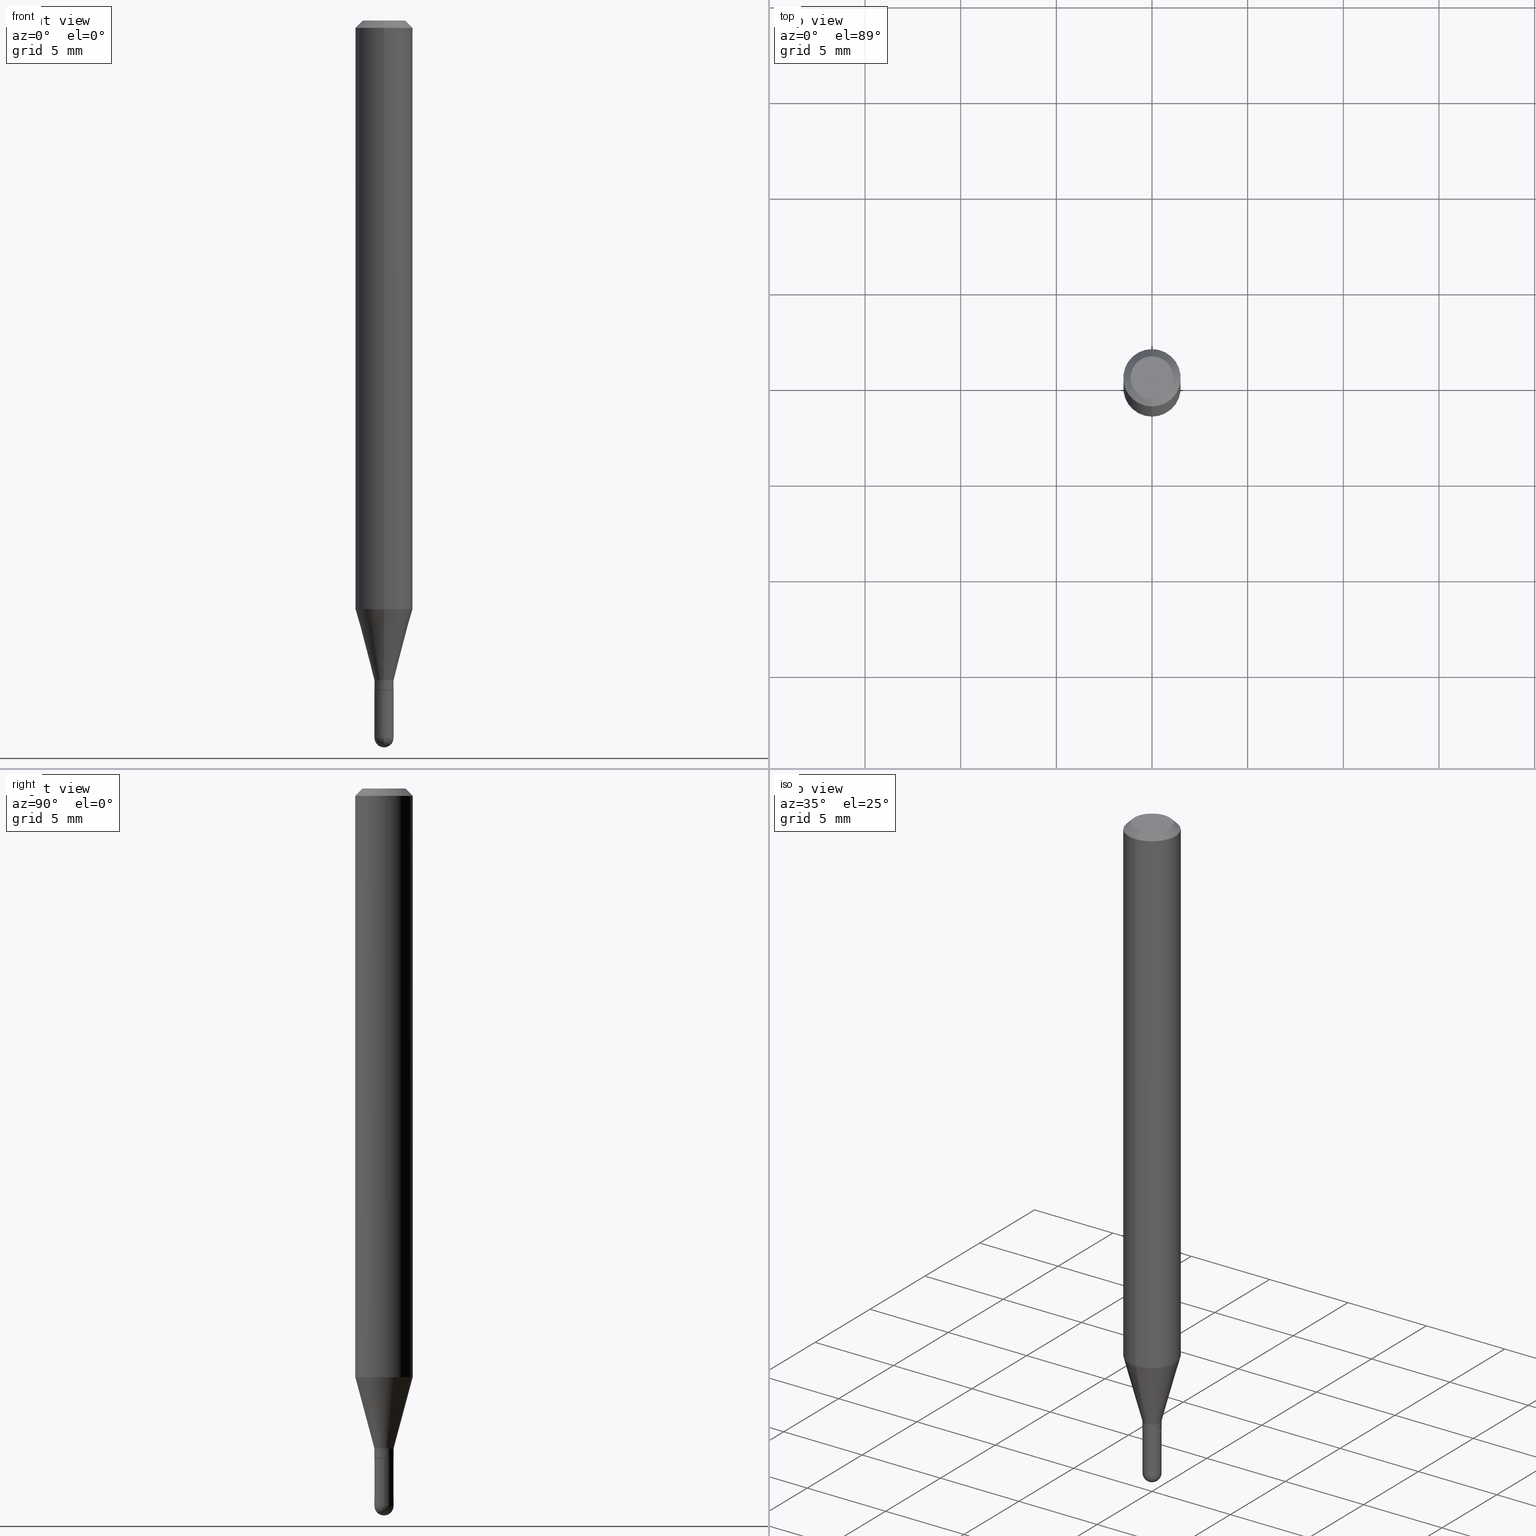
[diagram: canonical four-view strip — front | top / right | iso, engineering-drawing reading convention]
A machine part, canonical four-view strip (front | top / right | iso — engineering-drawing reading convention). The complete STEP part file that produces these views, byte-faithful:
ISO-10303-21;
HEADER;
FILE_DESCRIPTION (( 'STEP AP203' ),
    '1' );
FILE_NAME ('01979.STEP',
    '2024-03-07T19:50:08',
    ( '' ),
    ( '' ),
    'SwSTEP 2.0',
    'SolidWorks 2023',
    '' );
FILE_SCHEMA (( 'CONFIG_CONTROL_DESIGN' ));
ENDSEC;

DATA;
#1 = DIRECTION ( 'NONE',  ( 1.000000000000000000, -6.982962677686278543E-15, 0.000000000000000000 ) ) ;
#2 = PERSON_AND_ORGANIZATION ( #281, #487 ) ;
#3 = FACE_OUTER_BOUND ( 'NONE', #146, .T. ) ;
#4 = EDGE_CURVE ( 'NONE', #191, #498, #394, .T. ) ;
#5 = CYLINDRICAL_SURFACE ( 'NONE', #496, 0.01969999999999978366 ) ;
#6 = CONICAL_SURFACE ( 'NONE', #300, 0.05904999999999999832, 0.7853981633974483900 ) ;
#7 = DIRECTION ( 'NONE',  ( -6.982962677686265922E-15, -1.000000000000000000, 3.505890868245046092E-15 ) ) ;
#8 = VERTEX_POINT ( 'NONE', #322 ) ;
#9 = DIRECTION ( 'NONE',  ( -2.445625033905502397E-29, 3.491257611855652389E-15, 1.000000000000000000 ) ) ;
#10 = SPHERICAL_SURFACE ( 'NONE', #12, 0.01969999999999989468 ) ;
#11 = ORIENTED_EDGE ( 'NONE', *, *, #452, .T. ) ;
#12 = AXIS2_PLACEMENT_3D ( 'NONE', #369, #137, #14 ) ;
#13 = COORDINATED_UNIVERSAL_TIME_OFFSET ( 5, 0, .BEHIND. ) ;
#14 = DIRECTION ( 'NONE',  ( -6.982962677686266711E-15, -1.000000000000000000, 0.000000000000000000 ) ) ;
#15 = CC_DESIGN_PERSON_AND_ORGANIZATION_ASSIGNMENT ( #79, #288, ( #165 ) ) ;
#16 = ORIENTED_EDGE ( 'NONE', *, *, #169, .T. ) ;
#17 = CARTESIAN_POINT ( 'NONE',  ( 3.321403358547062397E-29, -4.741476962661159590E-15, -1.358099999999999641 ) ) ;
#18 = ORIENTED_EDGE ( 'NONE', *, *, #452, .F. ) ;
#19 = DIRECTION ( 'NONE',  ( -6.982962677686265922E-15, -1.000000000000000000, 4.626330217890369336E-15 ) ) ;
#20 = ORIENTED_EDGE ( 'NONE', *, *, #22, .T. ) ;
#21 = AXIS2_PLACEMENT_3D ( 'NONE', #474, #436, #203 ) ;
#22 = EDGE_CURVE ( 'NONE', #185, #248, #122, .T. ) ;
#23 = AXIS2_PLACEMENT_3D ( 'NONE', #294, #405, #449 ) ;
#24 = CARTESIAN_POINT ( 'NONE',  ( 3.610490145451735091E-29, -5.154823048668019264E-15, -1.476399999999999935 ) ) ;
#25 = EDGE_LOOP ( 'NONE', ( #382, #141, #104, #263 ) ) ;
#26 = CARTESIAN_POINT ( 'NONE',  ( -1.375643647503856631E-16, -0.01970000000000480048, -1.377499999999999947 ) ) ;
#27 = VERTEX_POINT ( 'NONE', #78 ) ;
#28 = CYLINDRICAL_SURFACE ( 'NONE', #77, 0.05904999999999999832 ) ;
#29 = EDGE_LOOP ( 'NONE', ( #270, #230, #232, #212 ) ) ;
#30 = ADVANCED_FACE ( 'NONE', ( #3 ), #398, .T. ) ;
#31 = PERSON_AND_ORGANIZATION ( #281, #487 ) ;
#32 = CIRCLE ( 'NONE', #23, 0.01969999999999999876 ) ;
#33 = EDGE_LOOP ( 'NONE', ( #392, #407, #64, #70 ) ) ;
#34 = DATE_AND_TIME ( #428, #439 ) ;
#35 = DIRECTION ( 'NONE',  ( -2.445468806185136597E-29, 3.491481338843145583E-15, 1.000000000000000000 ) ) ;
#36 = ADVANCED_FACE ( 'NONE', ( #237 ), #282, .F. ) ;
#37 = CARTESIAN_POINT ( 'NONE',  ( -0.01969999999999999876, 1.399769189447397278E-16, -9.690302127802162501E-31 ) ) ;
#38 = EDGE_CURVE ( 'NONE', #174, #389, #319, .T. ) ;
#39 = DIRECTION ( 'NONE',  ( 1.000000000000000000, 0.000000000000000000, 0.000000000000000000 ) ) ;
#40 = CIRCLE ( 'NONE', #440, 0.01969999999999964488 ) ;
#41 = FACE_OUTER_BOUND ( 'NONE', #217, .T. ) ;
#42 = AXIS2_PLACEMENT_3D ( 'NONE', #93, #97, #100 ) ;
#43 = LOCAL_TIME ( 14, 50, 8.000000000000000000, #13 ) ;
#44 = PERSON_AND_ORGANIZATION ( #281, #487 ) ;
#45 = FACE_OUTER_BOUND ( 'NONE', #25, .T. ) ;
#46 = DATE_TIME_ROLE ( 'classification_date' ) ;
#47 = FACE_OUTER_BOUND ( 'NONE', #379, .T. ) ;
#48 = AXIS2_PLACEMENT_3D ( 'NONE', #88, #126, #160 ) ;
#49 = CARTESIAN_POINT ( 'NONE',  ( 4.195754854663390985E-16, 0.05904999999999999832, -2.061587619800762305E-16 ) ) ;
#50 = ORIENTED_EDGE ( 'NONE', *, *, #250, .F. ) ;
#51 = AXIS2_PLACEMENT_3D ( 'NONE', #338, #450, #98 ) ;
#52 = CARTESIAN_POINT ( 'NONE',  ( 3.370071296721782520E-29, -4.810952989137087995E-15, -1.377999999999999892 ) ) ;
#53 = CARTESIAN_POINT ( 'NONE',  ( 3.368848484204829196E-29, -4.809207360331161033E-15, -1.377499999999999947 ) ) ;
#54 = PRODUCT_DEFINITION ( 'UNKNOWN', '', #192, #355 ) ;
#55 = COORDINATED_UNIVERSAL_TIME_OFFSET ( 5, 0, .BEHIND. ) ;
#56 = CARTESIAN_POINT ( 'NONE',  ( 5.838220061560797659E-46, -8.334364404613009200E-32, -2.387209805518527816E-17 ) ) ;
#57 = EDGE_LOOP ( 'NONE', ( #460, #352, #144, #387 ) ) ;
#58 = VECTOR ( 'NONE', #446, 39.37007874015748143 ) ;
#59 = CARTESIAN_POINT ( 'NONE',  ( 0.000000000000000000, 0.000000000000000000, 0.000000000000000000 ) ) ;
#60 = EDGE_LOOP ( 'NONE', ( #350, #395 ) ) ;
#61 = DIRECTION ( 'NONE',  ( -6.982962677686265133E-15, -1.000000000000000000, 3.491257611855652389E-15 ) ) ;
#62 = EDGE_LOOP ( 'NONE', ( #456, #273, #342, #90 ) ) ;
#63 = DIRECTION ( 'NONE',  ( -2.445468806185136597E-29, 3.491481338843145583E-15, 1.000000000000000000 ) ) ;
#64 = ORIENTED_EDGE ( 'NONE', *, *, #478, .F. ) ;
#65 = CC_DESIGN_PERSON_AND_ORGANIZATION_ASSIGNMENT ( #2, #279, ( #192 ) ) ;
#66 = APPROVAL_PERSON_ORGANIZATION ( #508, #219, #435 ) ;
#67 = AXIS2_PLACEMENT_3D ( 'NONE', #277, #509, #318 ) ;
#68 = CIRCLE ( 'NONE', #227, 0.01969999999999999876 ) ;
#69 = CARTESIAN_POINT ( 'NONE',  ( -4.051124067684085231E-16, -0.05905000000000005383, -0.01499999999999981730 ) ) ;
#70 = ORIENTED_EDGE ( 'NONE', *, *, #303, .F. ) ;
#71 = EDGE_CURVE ( 'NONE', #185, #361, #384, .T. ) ;
#72 = CARTESIAN_POINT ( 'NONE',  ( 1.399769189447754238E-16, 0.01969999999999479112, -1.476399999999999935 ) ) ;
#73 = ORIENTED_EDGE ( 'NONE', *, *, #447, .F. ) ;
#74 = CARTESIAN_POINT ( 'NONE',  ( 0.000000000000000000, 0.000000000000000000, 0.000000000000000000 ) ) ;
#75 = ORIENTED_EDGE ( 'NONE', *, *, #477, .T. ) ;
#76 =( CONVERSION_BASED_UNIT ( 'INCH', #321 ) LENGTH_UNIT ( ) NAMED_UNIT ( #504 ) );
#77 = AXIS2_PLACEMENT_3D ( 'NONE', #59, #218, #105 ) ;
#78 = CARTESIAN_POINT ( 'NONE',  ( 1.382005621053728545E-16, 0.01919999999999518620, -1.377999999999999892 ) ) ;
#79 = PERSON_AND_ORGANIZATION ( #281, #487 ) ;
#80 = EDGE_LOOP ( 'NONE', ( #188, #261, #280, #226 ) ) ;
#81 = COORDINATED_UNIVERSAL_TIME_OFFSET ( 5, 0, .BEHIND. ) ;
#82 = DIRECTION ( 'NONE',  ( -4.937700262164674260E-15, -0.7071067811865632269, 0.7071067811865319186 ) ) ;
#83 = CARTESIAN_POINT ( 'NONE',  ( 3.599717260347271507E-16, 0.04404999999999999888, -1.776619958574267450E-16 ) ) ;
#84 = VECTOR ( 'NONE', #198, 39.37007874015748143 ) ;
#85 = DIRECTION ( 'NONE',  ( -6.982962677686266711E-15, -1.000000000000000000, 0.000000000000000000 ) ) ;
#86 = CIRCLE ( 'NONE', #415, 0.01919999999999999485 ) ;
#87 = EDGE_CURVE ( 'NONE', #153, #429, #358, .T. ) ;
#88 = CARTESIAN_POINT ( 'NONE',  ( 5.838220061560797659E-46, -8.334364404613009200E-32, -2.387209805518527816E-17 ) ) ;
#89 = ADVANCED_FACE ( 'NONE', ( #399 ), #150, .T. ) ;
#90 = ORIENTED_EDGE ( 'NONE', *, *, #286, .F. ) ;
#91 = LOCAL_TIME ( 14, 50, 8.000000000000000000, #81 ) ;
#92 = AXIS2_PLACEMENT_3D ( 'NONE', #469, #287, #1 ) ;
#93 = CARTESIAN_POINT ( 'NONE',  ( 3.369856014923117948E-29, -4.811261284925853951E-15, -1.377999999999999892 ) ) ;
#94 = VECTOR ( 'NONE', #9, 39.37007874015748143 ) ;
#95 = ORIENTED_EDGE ( 'NONE', *, *, #87, .F. ) ;
#96 = AXIS2_PLACEMENT_3D ( 'NONE', #502, #231, #311 ) ;
#97 = DIRECTION ( 'NONE',  ( -2.445468806185136597E-29, 3.491481338843145583E-15, 1.000000000000000000 ) ) ;
#98 = DIRECTION ( 'NONE',  ( 7.105427357601000281E-15, 1.000000000000000000, 0.000000000000000000 ) ) ;
#99 = VERTEX_POINT ( 'NONE', #510 ) ;
#100 = DIRECTION ( 'NONE',  ( 1.000000000000000000, -6.982962677686278543E-15, 0.000000000000000000 ) ) ;
#101 = ORIENTED_EDGE ( 'NONE', *, *, #4, .T. ) ;
#102 = APPROVAL_PERSON_ORGANIZATION ( #489, #314, #329 ) ;
#103 = DIRECTION ( 'NONE',  ( 1.000000000000000000, -6.982962677686265922E-15, 4.876176775795935232E-29 ) ) ;
#104 = ORIENTED_EDGE ( 'NONE', *, *, #442, .T. ) ;
#105 = DIRECTION ( 'NONE',  ( -6.982962677686265922E-15, -1.000000000000000000, 3.491257611855651601E-15 ) ) ;
#106 = ORIENTED_EDGE ( 'NONE', *, *, #210, .T. ) ;
#107 = FACE_OUTER_BOUND ( 'NONE', #467, .T. ) ;
#108 = ORIENTED_EDGE ( 'NONE', *, *, #348, .F. ) ;
#109 = VECTOR ( 'NONE', #211, 39.37007874015748143 ) ;
#110 = EDGE_CURVE ( 'NONE', #99, #361, #225, .T. ) ;
#111 = DIRECTION ( 'NONE',  ( -2.445468806185136877E-29, 3.491481338843145188E-15, 1.000000000000000000 ) ) ;
#112 = ORIENTED_EDGE ( 'NONE', *, *, #22, .F. ) ;
#113 = ADVANCED_FACE ( 'NONE', ( #41 ), #364, .T. ) ;
#114 = DATE_AND_TIME ( #397, #91 ) ;
#115 = ORIENTED_EDGE ( 'NONE', *, *, #87, .T. ) ;
#116 = CARTESIAN_POINT ( 'NONE',  ( -1.340728834115425821E-16, -0.01920000000000480697, -1.377999999999999892 ) ) ;
#117 = AXIS2_PLACEMENT_3D ( 'NONE', #325, #356, #205 ) ;
#118 = AXIS2_PLACEMENT_3D ( 'NONE', #438, #196, #85 ) ;
#119 = LINE ( 'NONE', #239, #158 ) ;
#120 = EDGE_CURVE ( 'NONE', #507, #8, #40, .T. ) ;
#121 = APPROVAL_STATUS ( 'not_yet_approved' ) ;
#122 = LINE ( 'NONE', #37, #84 ) ;
#123 = APPROVAL_DATE_TIME ( #403, #347 ) ;
#124 = CARTESIAN_POINT ( 'NONE',  ( 3.668437550858259428E-31, -5.236886417783486226E-17, -0.01500000000000002373 ) ) ;
#125 = ADVANCED_FACE ( 'NONE', ( #45 ), #223, .T. ) ;
#126 = DIRECTION ( 'NONE',  ( -2.445625033905502397E-29, 3.491257611855651995E-15, 1.000000000000000000 ) ) ;
#127 = CIRCLE ( 'NONE', #260, 0.05904999999999999832 ) ;
#128 = PLANE ( 'NONE',  #488 ) ;
#129 = DIRECTION ( 'NONE',  ( -1.000000000000000000, 6.982962677686265922E-15, -4.876176775795935793E-29 ) ) ;
#130 = EDGE_CURVE ( 'NONE', #266, #507, #119, .T. ) ;
#131 = APPLICATION_CONTEXT ( 'configuration controlled 3d designs of mechanical parts and assemblies' ) ;
#132 = LOCAL_TIME ( 14, 50, 8.000000000000000000, #55 ) ;
#133 = DIRECTION ( 'NONE',  ( -2.445625033905502397E-29, 3.491257611855651995E-15, 1.000000000000000000 ) ) ;
#134 = CIRCLE ( 'NONE', #402, 0.04404999999999999888 ) ;
#135 = ADVANCED_FACE ( 'NONE', ( #316 ), #434, .T. ) ;
#136 = DATE_AND_TIME ( #368, #132 ) ;
#137 = DIRECTION ( 'NONE',  ( 1.000000000000000000, -6.982962677686266711E-15, 4.883557194083112340E-29 ) ) ;
#138 = ORIENTED_EDGE ( 'NONE', *, *, #187, .F. ) ;
#139 = DIRECTION ( 'NONE',  ( -2.445625033905502397E-29, 3.491257611855651995E-15, 1.000000000000000000 ) ) ;
#140 = CARTESIAN_POINT ( 'NONE',  ( 3.668437550858259428E-31, -5.236886417783486226E-17, -0.01500000000000002373 ) ) ;
#141 = ORIENTED_EDGE ( 'NONE', *, *, #305, .F. ) ;
#142 = CIRCLE ( 'NONE', #337, 0.01969999999999991896 ) ;
#143 = DIRECTION ( 'NONE',  ( -2.445625033905502397E-29, 3.491257611855651995E-15, 1.000000000000000000 ) ) ;
#144 = ORIENTED_EDGE ( 'NONE', *, *, #468, .F. ) ;
#145 = CARTESIAN_POINT ( 'NONE',  ( 2.962248161208970335E-29, -4.228764139084222964E-15, -1.211243800722163311 ) ) ;
#146 = EDGE_LOOP ( 'NONE', ( #220, #307, #309, #301 ) ) ;
#147 = LINE ( 'NONE', #259, #423 ) ;
#148 = VERTEX_POINT ( 'NONE', #431 ) ;
#149 = EDGE_CURVE ( 'NONE', #27, #153, #252, .T. ) ;
#150 = CONICAL_SURFACE ( 'NONE', #67, 0.01969999999999964488, 0.2617993877991500740 ) ;
#151 = MANIFOLD_SOLID_BREP ( 'Body-Move/Copy2[2]', #249 ) ;
#152 = DIRECTION ( 'NONE',  ( 6.982962677686265922E-15, 1.000000000000000000, -3.491257611855652389E-15 ) ) ;
#153 = VERTEX_POINT ( 'NONE', #493 ) ;
#154 = DIRECTION ( 'NONE',  ( -2.445625033905502397E-29, 3.491257611855652389E-15, 1.000000000000000000 ) ) ;
#155 = DIRECTION ( 'NONE',  ( 2.445625033905502397E-29, -3.491257611855651995E-15, -1.000000000000000000 ) ) ;
#156 = CC_DESIGN_APPROVAL ( #219, ( #54 ) ) ;
#157 = APPLICATION_CONTEXT ( 'configuration controlled 3d designs of mechanical parts and assemblies' ) ;
#158 = VECTOR ( 'NONE', #154, 39.37007874015748143 ) ;
#159 = CARTESIAN_POINT ( 'NONE',  ( -4.123439461173446476E-16, -0.05905000000000424493, -1.211243800722163089 ) ) ;
#160 = DIRECTION ( 'NONE',  ( -6.982962677686265133E-15, -1.000000000000000000, 3.491257611855652389E-15 ) ) ;
#161 = APPROVAL_DATE_TIME ( #114, #219 ) ;
#162 = DIRECTION ( 'NONE',  ( 1.000000000000000000, -6.982962677686265922E-15, 4.876176775795935232E-29 ) ) ;
#163 = CARTESIAN_POINT ( 'NONE',  ( 3.370071296721782520E-29, -4.810952989137087995E-15, -1.377999999999999892 ) ) ;
#164 = CARTESIAN_POINT ( 'NONE',  ( 3.610490145451735091E-29, -5.154823048668019264E-15, -1.476399999999999935 ) ) ;
#165 = SECURITY_CLASSIFICATION ( '', '', #433 ) ;
#166 = CARTESIAN_POINT ( 'NONE',  ( 3.668437550858259428E-31, -5.236886417783486226E-17, -0.01500000000000002373 ) ) ;
#167 = UNCERTAINTY_MEASURE_WITH_UNIT (LENGTH_MEASURE( 1.000000000000000082E-05 ), #76, 'distance_accuracy_value', 'NONE');
#168 = DIRECTION ( 'NONE',  ( 2.438088387897960049E-29, -3.491481338843145188E-15, -1.000000000000000000 ) ) ;
#169 = EDGE_CURVE ( 'NONE', #148, #248, #201, .T. ) ;
#170 = DIRECTION ( 'NONE',  ( -2.445625033905502397E-29, 3.491257611855651995E-15, 1.000000000000000000 ) ) ;
#171 = APPROVAL_STATUS ( 'not_yet_approved' ) ;
#172 = CARTESIAN_POINT ( 'NONE',  ( -0.01969999999999999876, -4.843065247852196904E-15, -1.476399999999999935 ) ) ;
#173 = VECTOR ( 'NONE', #111, 39.37007874015748143 ) ;
#174 = VERTEX_POINT ( 'NONE', #292 ) ;
#175 = CARTESIAN_POINT ( 'NONE',  ( 3.668437550858259428E-31, -5.236886417783486226E-17, -0.01500000000000002373 ) ) ;
#176 = EDGE_LOOP ( 'NONE', ( #465, #346, #313, #503 ) ) ;
#177 = EDGE_CURVE ( 'NONE', #248, #148, #32, .T. ) ;
#178 = CARTESIAN_POINT ( 'NONE',  ( 4.195754854663688780E-16, 0.05904999999999994975, -0.01500000000000023016 ) ) ;
#179 = ORIENTED_EDGE ( 'NONE', *, *, #177, .F. ) ;
#180 = DIRECTION ( 'NONE',  ( 2.445625033905501836E-29, -3.491257611855652389E-15, -1.000000000000000000 ) ) ;
#181 = CLOSED_SHELL ( 'NONE', ( #359, #135, #242, #215, #113 ) ) ;
#182 = ORIENTED_EDGE ( 'NONE', *, *, #305, .T. ) ;
#183 = AXIS2_PLACEMENT_3D ( 'NONE', #24, #505, #459 ) ;
#184 = CARTESIAN_POINT ( 'NONE',  ( -4.123439461173736383E-16, -0.05905000000000005383, -0.01499999999999981730 ) ) ;
#185 = VERTEX_POINT ( 'NONE', #172 ) ;
#186 = LINE ( 'NONE', #344, #506 ) ;
#187 = EDGE_CURVE ( 'NONE', #266, #429, #142, .T. ) ;
#188 = ORIENTED_EDGE ( 'NONE', *, *, #297, .F. ) ;
#189 = ADVANCED_FACE ( 'NONE', ( #414 ), #5, .T. ) ;
#190 = FACE_OUTER_BOUND ( 'NONE', #33, .T. ) ;
#191 = VERTEX_POINT ( 'NONE', #213 ) ;
#192 = PRODUCT_DEFINITION_FORMATION_WITH_SPECIFIED_SOURCE ( 'ANY', '', #443, .NOT_KNOWN. ) ;
#193 = CIRCLE ( 'NONE', #310, 0.05904999999999999832 ) ;
#194 = AXIS2_PLACEMENT_3D ( 'NONE', #479, #444, #284 ) ;
#195 = CALENDAR_DATE ( 2024, 7, 3 ) ;
#196 = DIRECTION ( 'NONE',  ( -2.445625033905502397E-29, 3.491257611855651995E-15, 1.000000000000000000 ) ) ;
#197 = APPROVAL_STATUS ( 'not_yet_approved' ) ;
#198 = DIRECTION ( 'NONE',  ( -2.445468806185136877E-29, 3.491481338843145188E-15, 1.000000000000000000 ) ) ;
#199 = PERSON_AND_ORGANIZATION ( #281, #487 ) ;
#200 = DIRECTION ( 'NONE',  ( -1.000000000000000000, 6.982962677686265922E-15, -4.883557194083112340E-29 ) ) ;
#201 = CIRCLE ( 'NONE', #42, 0.01969999999999999876 ) ;
#202 = CC_DESIGN_APPROVAL ( #314, ( #165 ) ) ;
#203 = DIRECTION ( 'NONE',  ( -6.982962677686265922E-15, -1.000000000000000000, 3.491257611855652389E-15 ) ) ;
#204 = DIRECTION ( 'NONE',  ( -2.445625033905502397E-29, 3.491257611855651995E-15, 1.000000000000000000 ) ) ;
#205 = DIRECTION ( 'NONE',  ( -6.982962677686265922E-15, -1.000000000000000000, 3.491257611855651995E-15 ) ) ;
#206 = EDGE_CURVE ( 'NONE', #507, #495, #207, .T. ) ;
#207 = LINE ( 'NONE', #413, #291 ) ;
#208 = LINE ( 'NONE', #371, #94 ) ;
#209 = ORIENTED_EDGE ( 'NONE', *, *, #380, .F. ) ;
#210 = EDGE_CURVE ( 'NONE', #8, #501, #484, .T. ) ;
#211 = DIRECTION ( 'NONE',  ( -2.445625033905502397E-29, 3.491257611855652389E-15, 1.000000000000000000 ) ) ;
#212 = ORIENTED_EDGE ( 'NONE', *, *, #477, .F. ) ;
#213 = CARTESIAN_POINT ( 'NONE',  ( -3.536586717851222218E-16, -0.04404999999999999888, 1.299177997470561887E-16 ) ) ;
#214 = CARTESIAN_POINT ( 'NONE',  ( -1.375643647503837403E-16, -0.01970000000000438414, -1.358099999999999641 ) ) ;
#215 = ADVANCED_FACE ( 'NONE', ( #490 ), #10, .T. ) ;
#216 = CIRCLE ( 'NONE', #472, 0.01969999999999991896 ) ;
#217 = EDGE_LOOP ( 'NONE', ( #112, #257, #75, #485, #179 ) ) ;
#218 = DIRECTION ( 'NONE',  ( -2.445625033905502397E-29, 3.491257611855651995E-15, 1.000000000000000000 ) ) ;
#219 = APPROVAL ( #121, 'UNSPECIFIED' ) ;
#220 = ORIENTED_EDGE ( 'NONE', *, *, #130, .F. ) ;
#221 = CYLINDRICAL_SURFACE ( 'NONE', #96, 0.05904999999999999832 ) ;
#222 = EDGE_LOOP ( 'NONE', ( #18, #483, #115, #138 ) ) ;
#223 = CONICAL_SURFACE ( 'NONE', #233, 0.05904999999999999832, 0.7853981633974483900 ) ;
#224 = DIRECTION ( 'NONE',  ( -2.445625033905502397E-29, 3.491257611855651995E-15, 1.000000000000000000 ) ) ;
#225 = CIRCLE ( 'NONE', #269, 0.01969999999999989468 ) ;
#226 = ORIENTED_EDGE ( 'NONE', *, *, #265, .F. ) ;
#227 = AXIS2_PLACEMENT_3D ( 'NONE', #494, #63, #264 ) ;
#228 = EDGE_CURVE ( 'NONE', #153, #27, #86, .T. ) ;
#229 = FACE_OUTER_BOUND ( 'NONE', #370, .T. ) ;
#230 = ORIENTED_EDGE ( 'NONE', *, *, #250, .T. ) ;
#231 = DIRECTION ( 'NONE',  ( -2.445625033905502397E-29, 3.491257611855651995E-15, 1.000000000000000000 ) ) ;
#232 = ORIENTED_EDGE ( 'NONE', *, *, #38, .F. ) ;
#233 = AXIS2_PLACEMENT_3D ( 'NONE', #124, #155, #511 ) ;
#234 = EDGE_LOOP ( 'NONE', ( #50, #420, #451, #354 ) ) ;
#235 = AXIS2_PLACEMENT_3D ( 'NONE', #145, #143, #302 ) ;
#236 = PERSON_AND_ORGANIZATION_ROLE ( 'design_owner' ) ;
#237 = FACE_OUTER_BOUND ( 'NONE', #60, .T. ) ;
#238 = DIRECTION ( 'NONE',  ( -6.982962677686266711E-15, -1.000000000000000000, 0.000000000000000000 ) ) ;
#239 = CARTESIAN_POINT ( 'NONE',  ( 1.399769189447381748E-16, 0.01969999999999978366, -6.877777495355559151E-17 ) ) ;
#240 = PERSON_AND_ORGANIZATION_ROLE ( 'creator' ) ;
#241 = CARTESIAN_POINT ( 'NONE',  ( 3.608805467862051881E-29, -5.157235602862340147E-15, -1.476399999999999935 ) ) ;
#242 = ADVANCED_FACE ( 'NONE', ( #47 ), #128, .F. ) ;
#243 = APPLICATION_PROTOCOL_DEFINITION ( 'international standard', 'config_control_design', 1994, #131 ) ;
#244 = DIRECTION ( 'NONE',  ( -2.445625033905502397E-29, 3.491257611855651995E-15, 1.000000000000000000 ) ) ;
#245 = DIRECTION ( 'NONE',  ( 1.000000000000000000, -6.982962677686278543E-15, 0.000000000000000000 ) ) ;
#246 = LINE ( 'NONE', #445, #58 ) ;
#247 = ADVANCED_FACE ( 'NONE', ( #340 ), #6, .T. ) ;
#248 = VERTEX_POINT ( 'NONE', #289 ) ;
#249 = CLOSED_SHELL ( 'NONE', ( #189, #492, #247, #323, #274, #89, #461, #125, #411, #36, #391, #30 ) ) ;
#250 = EDGE_CURVE ( 'NONE', #99, #389, #454, .T. ) ;
#251 = LINE ( 'NONE', #49, #109 ) ;
#252 = CIRCLE ( 'NONE', #118, 0.01919999999999999485 ) ;
#253 = PRODUCT_RELATED_PRODUCT_CATEGORY ( 'detail', '', ( #443 ) ) ;
#254 = ORIENTED_EDGE ( 'NONE', *, *, #38, .T. ) ;
#255 = DIRECTION ( 'NONE',  ( 2.445625033905502397E-29, -3.491257611855651995E-15, -1.000000000000000000 ) ) ;
#256 = CARTESIAN_POINT ( 'NONE',  ( 1.399769189447723916E-16, 0.01969999999999504092, -1.377499999999999947 ) ) ;
#257 = ORIENTED_EDGE ( 'NONE', *, *, #71, .T. ) ;
#258 = AXIS2_PLACEMENT_3D ( 'NONE', #74, #275, #39 ) ;
#259 = CARTESIAN_POINT ( 'NONE',  ( 1.364242052659728982E-16, 0.01919999999999518620, -1.377999999999999892 ) ) ;
#260 = AXIS2_PLACEMENT_3D ( 'NONE', #500, #422, #19 ) ;
#261 = ORIENTED_EDGE ( 'NONE', *, *, #380, .T. ) ;
#262 = DIRECTION ( 'NONE',  ( -6.982962677686266711E-15, -1.000000000000000000, 0.000000000000000000 ) ) ;
#263 = ORIENTED_EDGE ( 'NONE', *, *, #265, .T. ) ;
#264 = DIRECTION ( 'NONE',  ( 1.000000000000000000, -6.982962677686278543E-15, 0.000000000000000000 ) ) ;
#265 = EDGE_CURVE ( 'NONE', #424, #491, #193, .T. ) ;
#266 = VERTEX_POINT ( 'NONE', #256 ) ;
#267 = DIRECTION ( 'NONE',  ( -2.445625033905502397E-29, 3.491257611855651995E-15, 1.000000000000000000 ) ) ;
#268 = LOCAL_TIME ( 14, 50, 8.000000000000000000, #475 ) ;
#269 = AXIS2_PLACEMENT_3D ( 'NONE', #241, #200, #401 ) ;
#270 = ORIENTED_EDGE ( 'NONE', *, *, #110, .F. ) ;
#271 = VECTOR ( 'NONE', #376, 39.37007874015748854 ) ;
#272 = LINE ( 'NONE', #299, #173 ) ;
#273 = ORIENTED_EDGE ( 'NONE', *, *, #130, .T. ) ;
#274 = ADVANCED_FACE ( 'NONE', ( #298 ), #408, .T. ) ;
#275 = DIRECTION ( 'NONE',  ( 0.000000000000000000, 0.000000000000000000, 1.000000000000000000 ) ) ;
#276 = ORIENTED_EDGE ( 'NONE', *, *, #177, .T. ) ;
#277 = CARTESIAN_POINT ( 'NONE',  ( 3.321403358547062397E-29, -4.741476962661159590E-15, -1.358099999999999641 ) ) ;
#278 = CONICAL_SURFACE ( 'NONE', #386, 0.01919999999999999485, 0.7853981633974739252 ) ;
#279 = PERSON_AND_ORGANIZATION_ROLE ( 'design_supplier' ) ;
#280 = ORIENTED_EDGE ( 'NONE', *, *, #303, .T. ) ;
#281 = PERSON ( 'UNSPECIFIED', 'UNSPECIFIED', 'UNSPECIFIED', ('UNSPECIFIED'), ('UNSPECIFIED'), ('UNSPECIFIED') ) ;
#282 = PLANE ( 'NONE',  #21 ) ;
#283 =( NAMED_UNIT ( * ) PLANE_ANGLE_UNIT ( ) SI_UNIT ( $, .RADIAN. ) );
#284 = DIRECTION ( 'NONE',  ( -6.982962677686266711E-15, -1.000000000000000000, 0.000000000000000000 ) ) ;
#285 = CIRCLE ( 'NONE', #235, 0.05904999999999999832 ) ;
#286 = EDGE_CURVE ( 'NONE', #429, #8, #246, .T. ) ;
#287 = DIRECTION ( 'NONE',  ( -2.445468806185136597E-29, 3.491481338843145583E-15, 1.000000000000000000 ) ) ;
#288 = PERSON_AND_ORGANIZATION_ROLE ( 'classification_officer' ) ;
#289 = CARTESIAN_POINT ( 'NONE',  ( -0.01969999999999999876, -4.843065247852196904E-15, -1.377999999999999892 ) ) ;
#290 = DIRECTION ( 'NONE',  ( 1.839019923739598738E-15, 0.2588190451025247363, 0.9659258262890673130 ) ) ;
#291 = VECTOR ( 'NONE', #290, 39.37007874015748854 ) ;
#292 = CARTESIAN_POINT ( 'NONE',  ( 0.01969999999999999876, -5.120606531547356216E-15, -1.476399999999999935 ) ) ;
#293 = APPROVAL_DATE_TIME ( #136, #314 ) ;
#294 = CARTESIAN_POINT ( 'NONE',  ( 3.369856014923117948E-29, -4.811261284925853951E-15, -1.377999999999999892 ) ) ;
#295 = ORIENTED_EDGE ( 'NONE', *, *, #228, .T. ) ;
#296 = CC_DESIGN_PERSON_AND_ORGANIZATION_ASSIGNMENT ( #44, #357, ( #192 ) ) ;
#297 = EDGE_CURVE ( 'NONE', #495, #424, #251, .T. ) ;
#298 = FACE_OUTER_BOUND ( 'NONE', #57, .T. ) ;
#299 = CARTESIAN_POINT ( 'NONE',  ( 0.01969999999999999876, -1.375643647504194363E-16, 9.606068248317991466E-31 ) ) ;
#300 = AXIS2_PLACEMENT_3D ( 'NONE', #166, #255, #486 ) ;
#301 = ORIENTED_EDGE ( 'NONE', *, *, #120, .F. ) ;
#302 = DIRECTION ( 'NONE',  ( -6.982962677686265922E-15, -1.000000000000000000, 4.626330217890369336E-15 ) ) ;
#303 = EDGE_CURVE ( 'NONE', #501, #491, #208, .T. ) ;
#304 = ORIENTED_EDGE ( 'NONE', *, *, #120, .T. ) ;
#305 = EDGE_CURVE ( 'NONE', #498, #191, #134, .T. ) ;
#306 = DIRECTION ( 'NONE',  ( -4.851104656540964275E-15, -0.7071067811865500152, -0.7071067811865450192 ) ) ;
#307 = ORIENTED_EDGE ( 'NONE', *, *, #187, .T. ) ;
#308 = LINE ( 'NONE', #69, #375 ) ;
#309 = ORIENTED_EDGE ( 'NONE', *, *, #286, .T. ) ;
#310 = AXIS2_PLACEMENT_3D ( 'NONE', #175, #406, #7 ) ;
#311 = DIRECTION ( 'NONE',  ( -6.982962677686265922E-15, -1.000000000000000000, 3.491257611855651601E-15 ) ) ;
#312 = ADVANCED_BREP_SHAPE_REPRESENTATION ( '01979', ( #482, #151, #258 ), #334 ) ;
#313 = ORIENTED_EDGE ( 'NONE', *, *, #478, .T. ) ;
#314 = APPROVAL ( #171, 'UNSPECIFIED' ) ;
#315 = MECHANICAL_CONTEXT ( 'NONE', #131, 'mechanical' ) ;
#316 = FACE_OUTER_BOUND ( 'NONE', #29, .T. ) ;
#317 = APPLICATION_PROTOCOL_DEFINITION ( 'international standard', 'config_control_design', 1994, #157 ) ;
#318 = DIRECTION ( 'NONE',  ( -6.982962677686266711E-15, -1.000000000000000000, 0.000000000000000000 ) ) ;
#319 = CIRCLE ( 'NONE', #92, 0.01969999999999999876 ) ;
#320 = CONICAL_SURFACE ( 'NONE', #432, 0.01919999999999999485, 0.7853981633974739252 ) ;
#321 = LENGTH_MEASURE_WITH_UNIT ( LENGTH_MEASURE( 0.02539999999999999897 ), #360 );
#322 = CARTESIAN_POINT ( 'NONE',  ( -1.375643647503837403E-16, -0.01970000000000438414, -1.358099999999999641 ) ) ;
#323 = ADVANCED_FACE ( 'NONE', ( #190 ), #221, .T. ) ;
#324 = APPROVAL_ROLE ( '' ) ;
#325 = CARTESIAN_POINT ( 'NONE',  ( 0.000000000000000000, 0.000000000000000000, 0.000000000000000000 ) ) ;
#326 = CARTESIAN_POINT ( 'NONE',  ( 0.000000000000000000, 0.000000000000000000, 0.000000000000000000 ) ) ;
#327 = APPROVAL_PERSON_ORGANIZATION ( #31, #347, #324 ) ;
#328 = AXIS2_PLACEMENT_3D ( 'NONE', #453, #133, #331 ) ;
#329 = APPROVAL_ROLE ( '' ) ;
#330 = CARTESIAN_POINT ( 'NONE',  ( 0.000000000000000000, 0.000000000000000000, 0.000000000000000000 ) ) ;
#331 = DIRECTION ( 'NONE',  ( -6.982962677686266711E-15, -1.000000000000000000, 0.000000000000000000 ) ) ;
#332 = EDGE_LOOP ( 'NONE', ( #418, #304, #106, #209 ) ) ;
#333 = DIRECTION ( 'NONE',  ( -2.445625033905502397E-29, 3.491257611855651995E-15, 1.000000000000000000 ) ) ;
#334 =( GEOMETRIC_REPRESENTATION_CONTEXT ( 3 ) GLOBAL_UNCERTAINTY_ASSIGNED_CONTEXT ( ( #167 ) ) GLOBAL_UNIT_ASSIGNED_CONTEXT ( ( #76, #283, #363 ) ) REPRESENTATION_CONTEXT ( 'NONE', 'WORKASPACE' ) );
#335 = AXIS2_PLACEMENT_3D ( 'NONE', #326, #35, #162 ) ;
#336 = CALENDAR_DATE ( 2024, 7, 3 ) ;
#337 = AXIS2_PLACEMENT_3D ( 'NONE', #53, #170, #409 ) ;
#338 = CARTESIAN_POINT ( 'NONE',  ( 3.608805467862051881E-29, -5.157235602862340147E-15, -1.476399999999999935 ) ) ;
#339 = CC_DESIGN_APPROVAL ( #347, ( #192 ) ) ;
#340 = FACE_OUTER_BOUND ( 'NONE', #176, .T. ) ;
#341 = DIRECTION ( 'NONE',  ( -6.982962677686265922E-15, -1.000000000000000000, 0.000000000000000000 ) ) ;
#342 = ORIENTED_EDGE ( 'NONE', *, *, #425, .F. ) ;
#343 = EDGE_CURVE ( 'NONE', #389, #185, #345, .T. ) ;
#344 = CARTESIAN_POINT ( 'NONE',  ( 4.123439461173743285E-16, 0.05904999999999994975, -0.01500000000000023016 ) ) ;
#345 = CIRCLE ( 'NONE', #183, 0.01969999999999999876 ) ;
#346 = ORIENTED_EDGE ( 'NONE', *, *, #372, .T. ) ;
#347 = APPROVAL ( #197, 'UNSPECIFIED' ) ;
#348 = EDGE_CURVE ( 'NONE', #174, #148, #272, .T. ) ;
#349 = CARTESIAN_POINT ( 'NONE',  ( 3.370071296721782520E-29, -4.810952989137087995E-15, -1.377999999999999892 ) ) ;
#350 = ORIENTED_EDGE ( 'NONE', *, *, #228, .F. ) ;
#351 = CARTESIAN_POINT ( 'NONE',  ( 3.368848484204829196E-29, -4.809207360331161033E-15, -1.377499999999999947 ) ) ;
#352 = ORIENTED_EDGE ( 'NONE', *, *, #206, .T. ) ;
#353 = CARTESIAN_POINT ( 'NONE',  ( 0.000000000000000000, 0.000000000000000000, 0.000000000000000000 ) ) ;
#354 = ORIENTED_EDGE ( 'NONE', *, *, #343, .F. ) ;
#355 = DESIGN_CONTEXT ( 'detailed design', #157, 'design' ) ;
#356 = DIRECTION ( 'NONE',  ( -2.445625033905502397E-29, 3.491257611855651995E-15, 1.000000000000000000 ) ) ;
#357 = PERSON_AND_ORGANIZATION_ROLE ( 'creator' ) ;
#358 = LINE ( 'NONE', #116, #374 ) ;
#359 = ADVANCED_FACE ( 'NONE', ( #107 ), #381, .T. ) ;
#360 =( LENGTH_UNIT ( ) NAMED_UNIT ( * ) SI_UNIT ( $, .METRE. ) );
#361 = VERTEX_POINT ( 'NONE', #378 ) ;
#362 = CC_DESIGN_SECURITY_CLASSIFICATION ( #165, ( #192 ) ) ;
#363 =( NAMED_UNIT ( * ) SI_UNIT ( $, .STERADIAN. ) SOLID_ANGLE_UNIT ( ) );
#364 = CYLINDRICAL_SURFACE ( 'NONE', #335, 0.01969999999999999876 ) ;
#365 = DATE_AND_TIME ( #336, #43 ) ;
#366 = CARTESIAN_POINT ( 'NONE',  ( 1.375643647504531108E-16, 0.01969999999999518664, -1.377999999999999892 ) ) ;
#367 = CIRCLE ( 'NONE', #448, 0.05904999999999999832 ) ;
#368 = CALENDAR_DATE ( 2024, 7, 3 ) ;
#369 = CARTESIAN_POINT ( 'NONE',  ( 3.608805467862051881E-29, -5.157235602862340147E-15, -1.476399999999999935 ) ) ;
#370 = EDGE_LOOP ( 'NONE', ( #182, #101 ) ) ;
#371 = CARTESIAN_POINT ( 'NONE',  ( -4.123439461173739834E-16, -0.05904999999999999832, 2.061587619800762305E-16 ) ) ;
#372 = EDGE_CURVE ( 'NONE', #191, #491, #308, .T. ) ;
#373 = DIRECTION ( 'NONE',  ( -6.982962677686265922E-15, -1.000000000000000000, 3.491257611855651995E-15 ) ) ;
#374 = VECTOR ( 'NONE', #82, 39.37007874015748143 ) ;
#375 = VECTOR ( 'NONE', #306, 39.37007874015748143 ) ;
#376 = DIRECTION ( 'NONE',  ( -1.807323732225328562E-15, -0.2588190451025179639, 0.9659258262890690894 ) ) ;
#377 = ORIENTED_EDGE ( 'NONE', *, *, #169, .F. ) ;
#378 = CARTESIAN_POINT ( 'NONE',  ( -1.375643647503830007E-16, -0.01970000000000510232, -1.476399999999999935 ) ) ;
#379 = EDGE_LOOP ( 'NONE', ( #16, #276 ) ) ;
#380 = EDGE_CURVE ( 'NONE', #495, #501, #127, .T. ) ;
#381 = CYLINDRICAL_SURFACE ( 'NONE', #441, 0.01969999999999999876 ) ;
#382 = ORIENTED_EDGE ( 'NONE', *, *, #372, .F. ) ;
#383 = CC_DESIGN_DATE_AND_TIME_ASSIGNMENT ( #34, #400, ( #54 ) ) ;
#384 = CIRCLE ( 'NONE', #421, 0.01969999999999999876 ) ;
#385 = DIRECTION ( 'NONE',  ( -6.982962677686265922E-15, -1.000000000000000000, 3.505890868245046092E-15 ) ) ;
#386 = AXIS2_PLACEMENT_3D ( 'NONE', #163, #204, #238 ) ;
#387 = ORIENTED_EDGE ( 'NONE', *, *, #210, .F. ) ;
#388 = DIRECTION ( 'NONE',  ( -6.982962677686266711E-15, -1.000000000000000000, 0.000000000000000000 ) ) ;
#389 = VERTEX_POINT ( 'NONE', #72 ) ;
#390 = DIRECTION ( 'NONE',  ( -2.445625033905502397E-29, 3.491257611855651995E-15, 1.000000000000000000 ) ) ;
#391 = ADVANCED_FACE ( 'NONE', ( #457 ), #320, .T. ) ;
#392 = ORIENTED_EDGE ( 'NONE', *, *, #468, .T. ) ;
#393 = CARTESIAN_POINT ( 'NONE',  ( 2.797762022055696241E-16, 0.01969999999999490214, -1.358099999999999641 ) ) ;
#394 = CIRCLE ( 'NONE', #48, 0.04404999999999999888 ) ;
#395 = ORIENTED_EDGE ( 'NONE', *, *, #149, .F. ) ;
#396 = AXIS2_PLACEMENT_3D ( 'NONE', #466, #180, #152 ) ;
#397 = CALENDAR_DATE ( 2024, 7, 3 ) ;
#398 = CYLINDRICAL_SURFACE ( 'NONE', #117, 0.01969999999999978366 ) ;
#399 = FACE_OUTER_BOUND ( 'NONE', #332, .T. ) ;
#400 = DATE_TIME_ROLE ( 'creation_date' ) ;
#401 = DIRECTION ( 'NONE',  ( -6.982962677686266711E-15, -1.000000000000000000, 0.000000000000000000 ) ) ;
#402 = AXIS2_PLACEMENT_3D ( 'NONE', #56, #224, #61 ) ;
#403 = DATE_AND_TIME ( #195, #268 ) ;
#404 = DIRECTION ( 'NONE',  ( -2.445468806185136597E-29, 3.491481338843145583E-15, 1.000000000000000000 ) ) ;
#405 = DIRECTION ( 'NONE',  ( -2.445468806185136597E-29, 3.491481338843145583E-15, 1.000000000000000000 ) ) ;
#406 = DIRECTION ( 'NONE',  ( -2.445625033905502397E-29, 3.491257611855651995E-15, 1.000000000000000000 ) ) ;
#407 = ORIENTED_EDGE ( 'NONE', *, *, #297, .T. ) ;
#408 = CONICAL_SURFACE ( 'NONE', #328, 0.01969999999999964488, 0.2617993877991500740 ) ;
#409 = DIRECTION ( 'NONE',  ( -6.982962677686265922E-15, -1.000000000000000000, 0.000000000000000000 ) ) ;
#410 = CC_DESIGN_DATE_AND_TIME_ASSIGNMENT ( #365, #46, ( #165 ) ) ;
#411 = ADVANCED_FACE ( 'NONE', ( #229 ), #417, .F. ) ;
#412 = SHAPE_DEFINITION_REPRESENTATION ( #480, #312 ) ;
#413 = CARTESIAN_POINT ( 'NONE',  ( 1.399769189447703701E-16, 0.01969999999999490214, -1.358099999999999641 ) ) ;
#414 = FACE_OUTER_BOUND ( 'NONE', #62, .T. ) ;
#415 = AXIS2_PLACEMENT_3D ( 'NONE', #52, #333, #481 ) ;
#416 = FACE_OUTER_BOUND ( 'NONE', #80, .T. ) ;
#417 = PLANE ( 'NONE',  #396 ) ;
#418 = ORIENTED_EDGE ( 'NONE', *, *, #206, .F. ) ;
#419 = DIRECTION ( 'NONE',  ( -2.445625033905502397E-29, 3.491257611855651995E-15, 1.000000000000000000 ) ) ;
#420 = ORIENTED_EDGE ( 'NONE', *, *, #110, .T. ) ;
#421 = AXIS2_PLACEMENT_3D ( 'NONE', #164, #404, #245 ) ;
#422 = DIRECTION ( 'NONE',  ( -2.445625033905502397E-29, 3.491257611855651995E-15, 1.000000000000000000 ) ) ;
#423 = VECTOR ( 'NONE', #463, 39.37007874015748143 ) ;
#424 = VERTEX_POINT ( 'NONE', #178 ) ;
#425 = EDGE_CURVE ( 'NONE', #8, #507, #512, .T. ) ;
#426 = DIRECTION ( 'NONE',  ( -2.445625033905502397E-29, 3.491257611855651995E-15, 1.000000000000000000 ) ) ;
#427 = EDGE_LOOP ( 'NONE', ( #295, #11, #73, #95 ) ) ;
#428 = CALENDAR_DATE ( 2024, 7, 3 ) ;
#429 = VERTEX_POINT ( 'NONE', #26 ) ;
#430 = FACE_OUTER_BOUND ( 'NONE', #427, .T. ) ;
#431 = CARTESIAN_POINT ( 'NONE',  ( 0.01969999999999999876, -4.948825649676273954E-15, -1.377999999999999892 ) ) ;
#432 = AXIS2_PLACEMENT_3D ( 'NONE', #349, #390, #262 ) ;
#433 = SECURITY_CLASSIFICATION_LEVEL ( 'unclassified' ) ;
#434 = SPHERICAL_SURFACE ( 'NONE', #194, 0.01969999999999989468 ) ;
#435 = APPROVAL_ROLE ( '' ) ;
#436 = DIRECTION ( 'NONE',  ( -2.445625033905501836E-29, 3.491257611855652389E-15, 1.000000000000000000 ) ) ;
#437 = PERSON_AND_ORGANIZATION ( #281, #487 ) ;
#438 = CARTESIAN_POINT ( 'NONE',  ( 3.370071296721782520E-29, -4.810952989137087995E-15, -1.377999999999999892 ) ) ;
#439 = LOCAL_TIME ( 14, 50, 8.000000000000000000, #470 ) ;
#440 = AXIS2_PLACEMENT_3D ( 'NONE', #471, #244, #476 ) ;
#441 = AXIS2_PLACEMENT_3D ( 'NONE', #353, #455, #103 ) ;
#442 = EDGE_CURVE ( 'NONE', #498, #424, #186, .T. ) ;
#443 = PRODUCT ( '01979', '01979', '', ( #315 ) ) ;
#444 = DIRECTION ( 'NONE',  ( 1.000000000000000000, -6.982962677686266711E-15, 4.883557194083112340E-29 ) ) ;
#445 = CARTESIAN_POINT ( 'NONE',  ( -1.375643647504179325E-16, -0.01969999999999978366, 6.877777495355559151E-17 ) ) ;
#446 = DIRECTION ( 'NONE',  ( -2.445625033905502397E-29, 3.491257611855652389E-15, 1.000000000000000000 ) ) ;
#447 = EDGE_CURVE ( 'NONE', #429, #266, #216, .T. ) ;
#448 = AXIS2_PLACEMENT_3D ( 'NONE', #140, #419, #385 ) ;
#449 = DIRECTION ( 'NONE',  ( 1.000000000000000000, -6.982962677686278543E-15, 0.000000000000000000 ) ) ;
#450 = DIRECTION ( 'NONE',  ( 1.000000000000000000, -7.105427357601001070E-15, 4.926315508542082329E-29 ) ) ;
#451 = ORIENTED_EDGE ( 'NONE', *, *, #71, .F. ) ;
#452 = EDGE_CURVE ( 'NONE', #27, #266, #147, .T. ) ;
#453 = CARTESIAN_POINT ( 'NONE',  ( 3.321403358547062397E-29, -4.741476962661159590E-15, -1.358099999999999641 ) ) ;
#454 = CIRCLE ( 'NONE', #51, 0.01969999999999989468 ) ;
#455 = DIRECTION ( 'NONE',  ( -2.445468806185136597E-29, 3.491481338843145583E-15, 1.000000000000000000 ) ) ;
#456 = ORIENTED_EDGE ( 'NONE', *, *, #447, .T. ) ;
#457 = FACE_OUTER_BOUND ( 'NONE', #222, .T. ) ;
#458 = ORIENTED_EDGE ( 'NONE', *, *, #343, .T. ) ;
#459 = DIRECTION ( 'NONE',  ( 1.000000000000000000, -6.982962677686278543E-15, 0.000000000000000000 ) ) ;
#460 = ORIENTED_EDGE ( 'NONE', *, *, #425, .T. ) ;
#461 = ADVANCED_FACE ( 'NONE', ( #416 ), #28, .T. ) ;
#462 = CC_DESIGN_PERSON_AND_ORGANIZATION_ASSIGNMENT ( #199, #236, ( #443 ) ) ;
#463 = DIRECTION ( 'NONE',  ( 5.024295867788190974E-15, 0.7071067811865681119, 0.7071067811865270336 ) ) ;
#464 = AXIS2_PLACEMENT_3D ( 'NONE', #17, #267, #388 ) ;
#465 = ORIENTED_EDGE ( 'NONE', *, *, #4, .F. ) ;
#466 = CARTESIAN_POINT ( 'NONE',  ( 3.075995059520799729E-16, 0.04404999999999999888, -1.657259468298341121E-16 ) ) ;
#467 = EDGE_LOOP ( 'NONE', ( #458, #20, #377, #108, #254 ) ) ;
#468 = EDGE_CURVE ( 'NONE', #501, #495, #285, .T. ) ;
#469 = CARTESIAN_POINT ( 'NONE',  ( 3.610490145451735091E-29, -5.154823048668019264E-15, -1.476399999999999935 ) ) ;
#470 = COORDINATED_UNIVERSAL_TIME_OFFSET ( 5, 0, .BEHIND. ) ;
#471 = CARTESIAN_POINT ( 'NONE',  ( 3.321403358547062397E-29, -4.741476962661159590E-15, -1.358099999999999641 ) ) ;
#472 = AXIS2_PLACEMENT_3D ( 'NONE', #351, #426, #341 ) ;
#473 = CARTESIAN_POINT ( 'NONE',  ( 4.195754854663685822E-16, 0.05904999999999575866, -1.211243800722163533 ) ) ;
#474 = CARTESIAN_POINT ( 'NONE',  ( 3.370071296721782520E-29, -4.810952989137087995E-15, -1.377999999999999892 ) ) ;
#475 = COORDINATED_UNIVERSAL_TIME_OFFSET ( 5, 0, .BEHIND. ) ;
#476 = DIRECTION ( 'NONE',  ( -6.982962677686266711E-15, -1.000000000000000000, 0.000000000000000000 ) ) ;
#477 = EDGE_CURVE ( 'NONE', #361, #174, #68, .T. ) ;
#478 = EDGE_CURVE ( 'NONE', #491, #424, #367, .T. ) ;
#479 = CARTESIAN_POINT ( 'NONE',  ( 3.608805467862051881E-29, -5.157235602862340147E-15, -1.476399999999999935 ) ) ;
#480 = PRODUCT_DEFINITION_SHAPE ( 'NONE', 'NONE',  #54 ) ;
#481 = DIRECTION ( 'NONE',  ( -6.982962677686266711E-15, -1.000000000000000000, 0.000000000000000000 ) ) ;
#482 = MANIFOLD_SOLID_BREP ( 'Body-Move/Copy2[1]', #181 ) ;
#483 = ORIENTED_EDGE ( 'NONE', *, *, #149, .T. ) ;
#484 = LINE ( 'NONE', #214, #271 ) ;
#485 = ORIENTED_EDGE ( 'NONE', *, *, #348, .T. ) ;
#486 = DIRECTION ( 'NONE',  ( 6.982962677686265922E-15, 1.000000000000000000, -3.505890868245046092E-15 ) ) ;
#487 = ORGANIZATION ( 'UNSPECIFIED', 'UNSPECIFIED', '' ) ;
#488 = AXIS2_PLACEMENT_3D ( 'NONE', #366, #168, #129 ) ;
#489 = PERSON_AND_ORGANIZATION ( #281, #487 ) ;
#490 = FACE_OUTER_BOUND ( 'NONE', #234, .T. ) ;
#491 = VERTEX_POINT ( 'NONE', #184 ) ;
#492 = ADVANCED_FACE ( 'NONE', ( #430 ), #278, .T. ) ;
#493 = CARTESIAN_POINT ( 'NONE',  ( -1.340728834115425821E-16, -0.01920000000000480697, -1.377999999999999892 ) ) ;
#494 = CARTESIAN_POINT ( 'NONE',  ( 3.610490145451735091E-29, -5.154823048668019264E-15, -1.476399999999999935 ) ) ;
#495 = VERTEX_POINT ( 'NONE', #473 ) ;
#496 = AXIS2_PLACEMENT_3D ( 'NONE', #330, #139, #373 ) ;
#497 = DIRECTION ( 'NONE',  ( 4.937700262164548042E-15, 0.7071067811865451302, -0.7071067811865499042 ) ) ;
#498 = VERTEX_POINT ( 'NONE', #83 ) ;
#499 = CC_DESIGN_PERSON_AND_ORGANIZATION_ASSIGNMENT ( #437, #240, ( #54 ) ) ;
#500 = CARTESIAN_POINT ( 'NONE',  ( 2.962248161208970335E-29, -4.228764139084222964E-15, -1.211243800722163311 ) ) ;
#501 = VERTEX_POINT ( 'NONE', #159 ) ;
#502 = CARTESIAN_POINT ( 'NONE',  ( 0.000000000000000000, 0.000000000000000000, 0.000000000000000000 ) ) ;
#503 = ORIENTED_EDGE ( 'NONE', *, *, #442, .F. ) ;
#504 = DIMENSIONAL_EXPONENTS ( 1.000000000000000000, 0.000000000000000000, 0.000000000000000000, 0.000000000000000000, 0.000000000000000000, 0.000000000000000000, 0.000000000000000000 ) ;
#505 = DIRECTION ( 'NONE',  ( -2.445468806185136597E-29, 3.491481338843145583E-15, 1.000000000000000000 ) ) ;
#506 = VECTOR ( 'NONE', #497, 39.37007874015748143 ) ;
#507 = VERTEX_POINT ( 'NONE', #393 ) ;
#508 = PERSON_AND_ORGANIZATION ( #281, #487 ) ;
#509 = DIRECTION ( 'NONE',  ( -2.445625033905502397E-29, 3.491257611855651995E-15, 1.000000000000000000 ) ) ;
#510 = CARTESIAN_POINT ( 'NONE',  ( 3.656138864549057573E-29, -5.227224062334710196E-15, -1.496099999999999541 ) ) ;
#511 = DIRECTION ( 'NONE',  ( 6.982962677686265922E-15, 1.000000000000000000, -3.505890868245046092E-15 ) ) ;
#512 = CIRCLE ( 'NONE', #464, 0.01969999999999964488 ) ;
ENDSEC;
END-ISO-10303-21;
